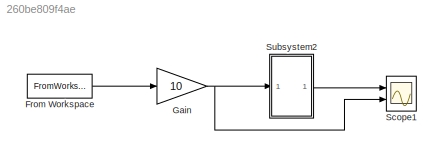
MODEL slx_260be809f4ae
KIND model
CONFIG AbsTol = auto
CONFIG FixedStep = auto
CONFIG MaxStep = auto
CONFIG MinStep = auto
CONFIG RelTol = 1e-3
CONFIG SampleTimeConstraint = Unconstrained
CONFIG Solver = VariableStepAuto
CONFIG SolverMode = SingleTasking
CONFIG SolverName = VariableStepAuto
CONFIG StartTime = 0.0
CONFIG StopTime = T
BLOCK [FromWorkspace] From Workspace
  SampleTime = T
  VariableName = [0 U]
  ZeroCross = on
BLOCK [Gain] Gain
  Gain = 10
  OutDataTypeStr = Inherit: Inherit via internal rule
  ParamDataTypeStr = Inherit: Inherit via internal rule
  SaturateOnIntegerOverflow = off
BLOCK [Scope] Scope1
  Floating = off
  NumInputPorts = 2
  Ports = [2]
  ScopeSpecificationString = Simulink.scopes.TimeScopeBlockCfg('CurrentConfiguration', extmgr.ConfigurationSet(extmgr.Configuration('Core','General UI',true),extmgr.Configuration('Core','Source UI',true),extmgr.Configuration('Sources','WiredSimulink',true),extmgr.Configuration('Visuals','Time Domain',true,'SerializedDisplays',{struct('MinYLimReal','0.3381','MaxYLimReal','0.5335','YLabelReal','','MinYLimMag','0.3381','MaxYLimM...<+1400ch>
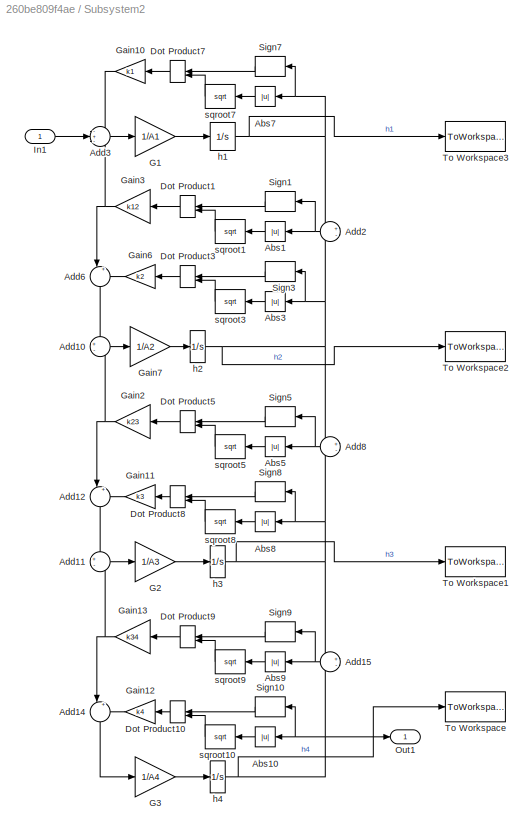
BLOCK [SubSystem] Subsystem2
  Ports = [1, 1]
  RequestExecContextInheritance = off
BLOCK [Abs] Subsystem2/Abs1
  SaturateOnIntegerOverflow = off
BLOCK [Abs] Subsystem2/Abs10
  SaturateOnIntegerOverflow = off
BLOCK [Abs] Subsystem2/Abs3
  SaturateOnIntegerOverflow = off
BLOCK [Abs] Subsystem2/Abs5
  SaturateOnIntegerOverflow = off
BLOCK [Abs] Subsystem2/Abs7
  SaturateOnIntegerOverflow = off
BLOCK [Abs] Subsystem2/Abs8
  SaturateOnIntegerOverflow = off
BLOCK [Abs] Subsystem2/Abs9
  SaturateOnIntegerOverflow = off
BLOCK [Sum] Subsystem2/Add10
  IconShape = round
  InputSameDT = off
  Inputs = +-
  OutDataTypeStr = Inherit: Inherit via internal rule
  Ports = [2, 1]
  SaturateOnIntegerOverflow = off
BLOCK [Sum] Subsystem2/Add11
  IconShape = round
  InputSameDT = off
  Inputs = +-
  OutDataTypeStr = Inherit: Inherit via internal rule
  Ports = [2, 1]
  SaturateOnIntegerOverflow = off
BLOCK [Sum] Subsystem2/Add12
  IconShape = round
  InputSameDT = off
  Inputs = |+-
  OutDataTypeStr = Inherit: Inherit via internal rule
  Ports = [2, 1]
  SaturateOnIntegerOverflow = off
BLOCK [Sum] Subsystem2/Add14
  IconShape = round
  InputSameDT = off
  Inputs = |+-
  OutDataTypeStr = Inherit: Inherit via internal rule
  Ports = [2, 1]
  SaturateOnIntegerOverflow = off
BLOCK [Sum] Subsystem2/Add15
  IconShape = round
  InputSameDT = off
  Inputs = +-
  OutDataTypeStr = Inherit: Inherit via internal rule
  Ports = [2, 1]
  SaturateOnIntegerOverflow = off
BLOCK [Sum] Subsystem2/Add2
  IconShape = round
  InputSameDT = off
  Inputs = +-
  OutDataTypeStr = Inherit: Inherit via internal rule
  Ports = [2, 1]
  SaturateOnIntegerOverflow = off
BLOCK [Sum] Subsystem2/Add3
  IconShape = round
  InputSameDT = off
  Inputs = -+-
  OutDataTypeStr = Inherit: Inherit via internal rule
  Ports = [3, 1]
  SaturateOnIntegerOverflow = off
BLOCK [Sum] Subsystem2/Add6
  IconShape = round
  InputSameDT = off
  Inputs = |+-
  OutDataTypeStr = Inherit: Inherit via internal rule
  Ports = [2, 1]
  SaturateOnIntegerOverflow = off
BLOCK [Sum] Subsystem2/Add8
  IconShape = round
  InputSameDT = off
  Inputs = +-
  OutDataTypeStr = Inherit: Inherit via internal rule
  Ports = [2, 1]
  SaturateOnIntegerOverflow = off
BLOCK [DotProduct] Subsystem2/Dot Product1
  OutDataTypeStr = Inherit: Inherit via internal rule
BLOCK [DotProduct] Subsystem2/Dot Product10
  OutDataTypeStr = Inherit: Inherit via internal rule
BLOCK [DotProduct] Subsystem2/Dot Product3
  OutDataTypeStr = Inherit: Inherit via internal rule
BLOCK [DotProduct] Subsystem2/Dot Product5
  OutDataTypeStr = Inherit: Inherit via internal rule
BLOCK [DotProduct] Subsystem2/Dot Product7
  OutDataTypeStr = Inherit: Inherit via internal rule
BLOCK [DotProduct] Subsystem2/Dot Product8
  OutDataTypeStr = Inherit: Inherit via internal rule
BLOCK [DotProduct] Subsystem2/Dot Product9
  OutDataTypeStr = Inherit: Inherit via internal rule
BLOCK [Gain] Subsystem2/G1
  Gain = 1/A1
  OutDataTypeStr = Inherit: Inherit via internal rule
  ParamDataTypeStr = Inherit: Inherit via internal rule
  SaturateOnIntegerOverflow = off
BLOCK [Gain] Subsystem2/G2
  Gain = 1/A3
  OutDataTypeStr = Inherit: Inherit via internal rule
  ParamDataTypeStr = Inherit: Inherit via internal rule
  SaturateOnIntegerOverflow = off
BLOCK [Gain] Subsystem2/G3
  Gain = 1/A4
  OutDataTypeStr = Inherit: Inherit via internal rule
  ParamDataTypeStr = Inherit: Inherit via internal rule
  SaturateOnIntegerOverflow = off
BLOCK [Gain] Subsystem2/Gain10
  Gain = k1
  OutDataTypeStr = Inherit: Inherit via internal rule
  ParamDataTypeStr = Inherit: Inherit via internal rule
  SaturateOnIntegerOverflow = off
BLOCK [Gain] Subsystem2/Gain11
  Gain = k3
  OutDataTypeStr = Inherit: Inherit via internal rule
  ParamDataTypeStr = Inherit: Inherit via internal rule
  SaturateOnIntegerOverflow = off
BLOCK [Gain] Subsystem2/Gain12
  Gain = k4
  OutDataTypeStr = Inherit: Inherit via internal rule
  ParamDataTypeStr = Inherit: Inherit via internal rule
  SaturateOnIntegerOverflow = off
BLOCK [Gain] Subsystem2/Gain13
  Gain = k34
  OutDataTypeStr = Inherit: Inherit via internal rule
  ParamDataTypeStr = Inherit: Inherit via internal rule
  SaturateOnIntegerOverflow = off
BLOCK [Gain] Subsystem2/Gain2
  Gain = k23
  OutDataTypeStr = Inherit: Inherit via internal rule
  ParamDataTypeStr = Inherit: Inherit via internal rule
  SaturateOnIntegerOverflow = off
BLOCK [Gain] Subsystem2/Gain3
  Gain = k12
  OutDataTypeStr = Inherit: Inherit via internal rule
  ParamDataTypeStr = Inherit: Inherit via internal rule
  SaturateOnIntegerOverflow = off
BLOCK [Gain] Subsystem2/Gain6
  Gain = k2
  OutDataTypeStr = Inherit: Inherit via internal rule
  ParamDataTypeStr = Inherit: Inherit via internal rule
  SaturateOnIntegerOverflow = off
BLOCK [Gain] Subsystem2/Gain7
  Gain = 1/A2
  OutDataTypeStr = Inherit: Inherit via internal rule
  ParamDataTypeStr = Inherit: Inherit via internal rule
  SaturateOnIntegerOverflow = off
BLOCK [Inport] Subsystem2/In1
  IconDisplay = Port number
BLOCK [Outport] Subsystem2/Out1
  IconDisplay = Port number
BLOCK [Signum] Subsystem2/Sign1
BLOCK [Signum] Subsystem2/Sign10
BLOCK [Signum] Subsystem2/Sign3
BLOCK [Signum] Subsystem2/Sign5
BLOCK [Signum] Subsystem2/Sign7
BLOCK [Signum] Subsystem2/Sign8
BLOCK [Signum] Subsystem2/Sign9
BLOCK [ToWorkspace] Subsystem2/To Workspace
  FixptAsFi = on
  MaxDataPoints = inf
  Ports = [1]
  SampleTime = T
  Save2DSignal = 3-D array (concatenate along third dimension)
  VariableName = h4
BLOCK [ToWorkspace] Subsystem2/To Workspace1
  FixptAsFi = on
  MaxDataPoints = inf
  Ports = [1]
  SampleTime = T
  Save2DSignal = 3-D array (concatenate along third dimension)
  VariableName = h3
BLOCK [ToWorkspace] Subsystem2/To Workspace2
  FixptAsFi = on
  MaxDataPoints = inf
  Ports = [1]
  SampleTime = T
  Save2DSignal = 3-D array (concatenate along third dimension)
  VariableName = h2
BLOCK [ToWorkspace] Subsystem2/To Workspace3
  FixptAsFi = on
  MaxDataPoints = inf
  Ports = [1]
  SampleTime = T
  Save2DSignal = 3-D array (concatenate along third dimension)
  VariableName = h1
BLOCK [Integrator] Subsystem2/h1
  InitialCondition = h1
  LimitOutput = on
  LowerSaturationLimit = 0
  Ports = [1, 1]
  UpperSaturationLimit = hmax
BLOCK [Integrator] Subsystem2/h2
  InitialCondition = h2
  LimitOutput = on
  LowerSaturationLimit = 0
  Ports = [1, 1]
  UpperSaturationLimit = hmax
BLOCK [Integrator] Subsystem2/h3
  InitialCondition = h3
  LimitOutput = on
  LowerSaturationLimit = 0
  Ports = [1, 1]
  UpperSaturationLimit = hmax
BLOCK [Integrator] Subsystem2/h4
  InitialCondition = h4
  LimitOutput = on
  LowerSaturationLimit = 0
  Ports = [1, 1]
  UpperSaturationLimit = hmax
BLOCK [Math] Subsystem2/sqroot1
  Operator = sqrt
  Ports = [1, 1]
BLOCK [Math] Subsystem2/sqroot10
  Operator = sqrt
  Ports = [1, 1]
BLOCK [Math] Subsystem2/sqroot3
  Operator = sqrt
  Ports = [1, 1]
BLOCK [Math] Subsystem2/sqroot5
  Operator = sqrt
  Ports = [1, 1]
BLOCK [Math] Subsystem2/sqroot7
  Operator = sqrt
  Ports = [1, 1]
BLOCK [Math] Subsystem2/sqroot8
  Operator = sqrt
  Ports = [1, 1]
BLOCK [Math] Subsystem2/sqroot9
  Operator = sqrt
  Ports = [1, 1]
LINE From Workspace:1 -> Gain:1
NET Gain:1 -> Scope1:2, Subsystem2:1
LINE Subsystem2/Abs10:1 -> Subsystem2/sqroot10:1
LINE Subsystem2/Abs1:1 -> Subsystem2/sqroot1:1
LINE Subsystem2/Abs3:1 -> Subsystem2/sqroot3:1
LINE Subsystem2/Abs5:1 -> Subsystem2/sqroot5:1
LINE Subsystem2/Abs7:1 -> Subsystem2/sqroot7:1
LINE Subsystem2/Abs8:1 -> Subsystem2/sqroot8:1
LINE Subsystem2/Abs9:1 -> Subsystem2/sqroot9:1
LINE Subsystem2/Add10:1 -> Subsystem2/Gain7:1
LINE Subsystem2/Add11:1 -> Subsystem2/G2:1
LINE Subsystem2/Add12:1 -> Subsystem2/Add11:1
LINE Subsystem2/Add14:1 -> Subsystem2/G3:1
NET Subsystem2/Add15:1 -> Subsystem2/Abs9:1, Subsystem2/Sign9:1
NET Subsystem2/Add2:1 -> Subsystem2/Abs1:1, Subsystem2/Sign1:1
LINE Subsystem2/Add3:1 -> Subsystem2/G1:1
LINE Subsystem2/Add6:1 -> Subsystem2/Add10:1
NET Subsystem2/Add8:1 -> Subsystem2/Abs5:1, Subsystem2/Sign5:1
LINE Subsystem2/Dot Product10:1 -> Subsystem2/Gain12:1
LINE Subsystem2/Dot Product1:1 -> Subsystem2/Gain3:1
LINE Subsystem2/Dot Product3:1 -> Subsystem2/Gain6:1
LINE Subsystem2/Dot Product5:1 -> Subsystem2/Gain2:1
LINE Subsystem2/Dot Product7:1 -> Subsystem2/Gain10:1
LINE Subsystem2/Dot Product8:1 -> Subsystem2/Gain11:1
LINE Subsystem2/Dot Product9:1 -> Subsystem2/Gain13:1
LINE Subsystem2/G1:1 -> Subsystem2/h1:1
LINE Subsystem2/G2:1 -> Subsystem2/h3:1
LINE Subsystem2/G3:1 -> Subsystem2/h4:1
LINE Subsystem2/Gain10:1 -> Subsystem2/Add3:1
LINE Subsystem2/Gain11:1 -> Subsystem2/Add12:2
LINE Subsystem2/Gain12:1 -> Subsystem2/Add14:2
NET Subsystem2/Gain13:1 -> Subsystem2/Add11:2, Subsystem2/Add14:1
NET Subsystem2/Gain2:1 -> Subsystem2/Add10:2, Subsystem2/Add12:1
NET Subsystem2/Gain3:1 -> Subsystem2/Add3:3, Subsystem2/Add6:1
LINE Subsystem2/Gain6:1 -> Subsystem2/Add6:2
LINE Subsystem2/Gain7:1 -> Subsystem2/h2:1
LINE Subsystem2/In1:1 -> Subsystem2/Add3:2
LINE Subsystem2/Sign10:1 -> Subsystem2/Dot Product10:1
LINE Subsystem2/Sign1:1 -> Subsystem2/Dot Product1:1
LINE Subsystem2/Sign3:1 -> Subsystem2/Dot Product3:1
LINE Subsystem2/Sign5:1 -> Subsystem2/Dot Product5:1
LINE Subsystem2/Sign7:1 -> Subsystem2/Dot Product7:1
LINE Subsystem2/Sign8:1 -> Subsystem2/Dot Product8:1
LINE Subsystem2/Sign9:1 -> Subsystem2/Dot Product9:1
NET Subsystem2/h1:1 -> Subsystem2/Abs7:1, Subsystem2/Add2:1, Subsystem2/Sign7:1, Subsystem2/To Workspace3:1
NET Subsystem2/h2:1 -> Subsystem2/Abs3:1, Subsystem2/Add2:2, Subsystem2/Add8:1, Subsystem2/Sign3:1, Subsystem2/To Workspace2:1
NET Subsystem2/h3:1 -> Subsystem2/Abs8:1, Subsystem2/Add15:1, Subsystem2/Add8:2, Subsystem2/Sign8:1, Subsystem2/To Workspace1:1
NET Subsystem2/h4:1 -> Subsystem2/Abs10:1, Subsystem2/Add15:2, Subsystem2/Out1:1, Subsystem2/Sign10:1, Subsystem2/To Workspace:1
LINE Subsystem2/sqroot10:1 -> Subsystem2/Dot Product10:2
LINE Subsystem2/sqroot1:1 -> Subsystem2/Dot Product1:2
LINE Subsystem2/sqroot3:1 -> Subsystem2/Dot Product3:2
LINE Subsystem2/sqroot5:1 -> Subsystem2/Dot Product5:2
LINE Subsystem2/sqroot7:1 -> Subsystem2/Dot Product7:2
LINE Subsystem2/sqroot8:1 -> Subsystem2/Dot Product8:2
LINE Subsystem2/sqroot9:1 -> Subsystem2/Dot Product9:2
LINE Subsystem2:1 -> Scope1:1
note: NET lines group one-source signal fan-out (src -> all destinations, sorted); 1:1 wires keep LINE
